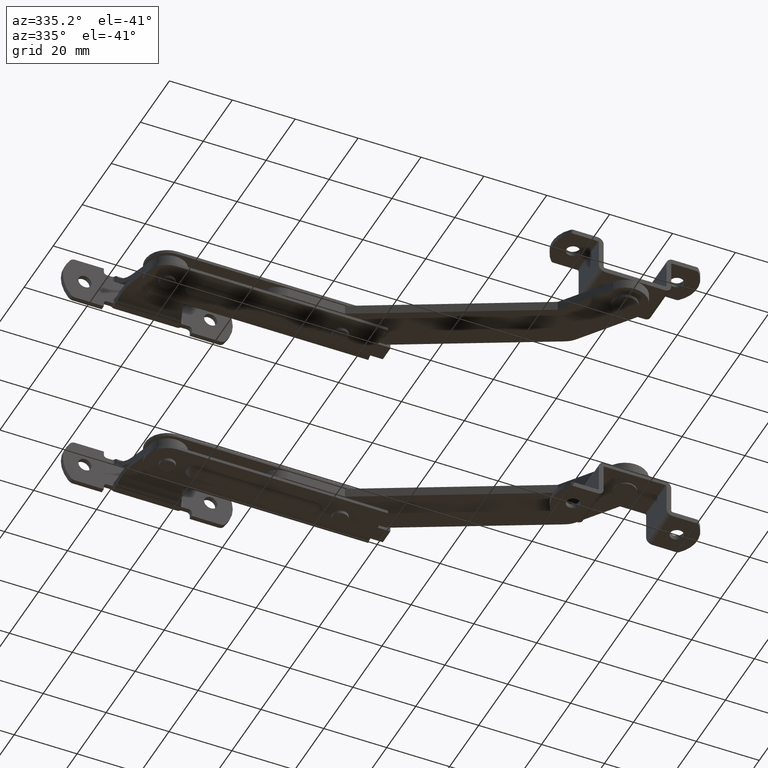
[diagram: clean part render]
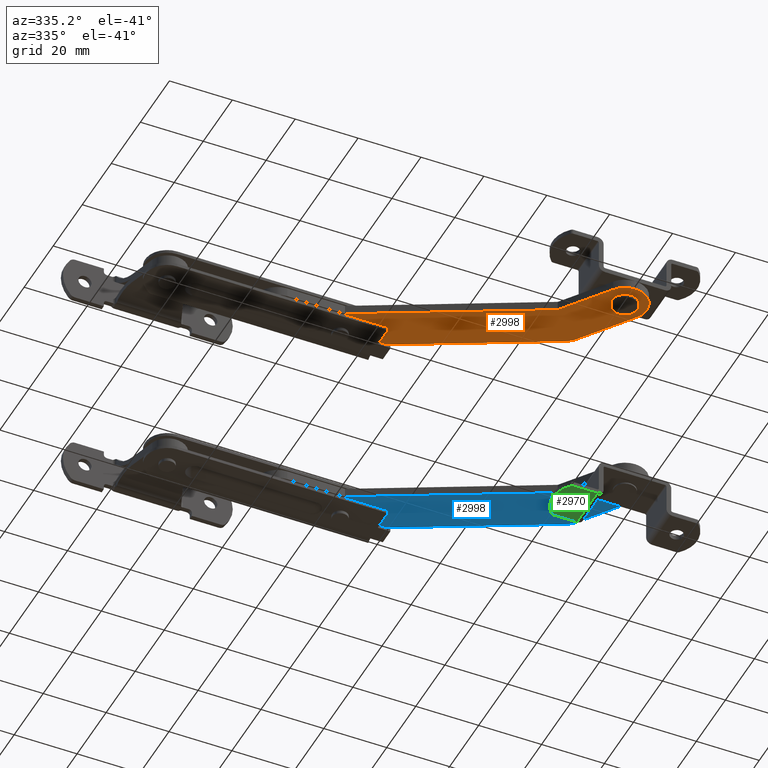
[diagram: same view with three faces highlighted in distinct colors, each labeled with its STEP entity id]
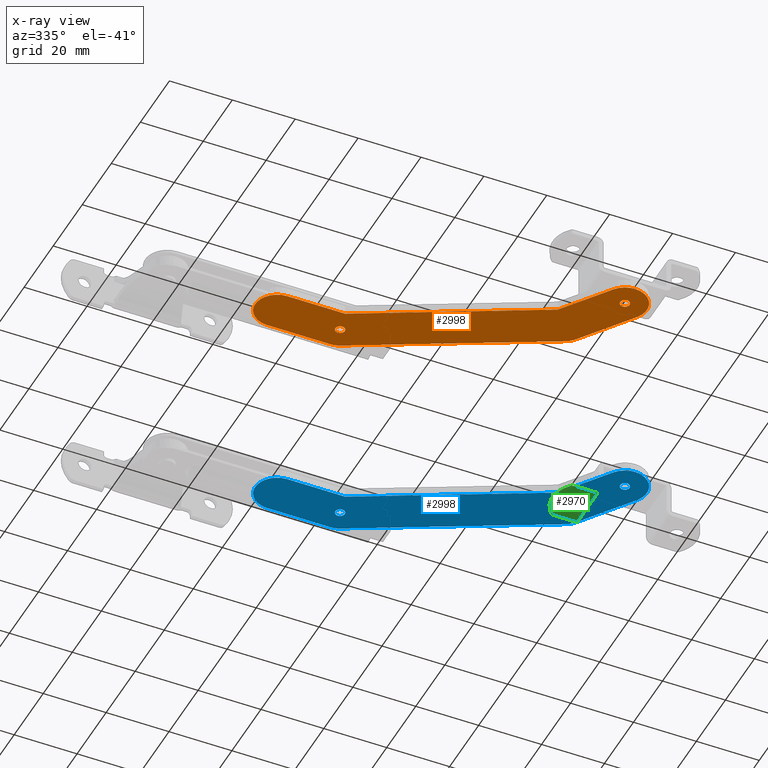
[diagram: x-ray of the same camera — body ghosted, the three highlighted faces saturated]
A machine part, auxiliary view with three faces highlighted in distinct colors.
The next image is the same camera in x-ray (body ghosted, the three faces saturated) — at least one of them is partly hidden behind the body in this view.
Their STEP definitions:

[orange] entity #2998 — the highlighted planar face has unit normal (-0, 0, 1).
#314=LINE('',#5423,#525);
#320=LINE('',#5435,#531);
#325=LINE('',#5453,#536);
#329=LINE('',#5460,#540);
#331=LINE('',#5471,#542);
#332=LINE('',#5474,#543);
#525=VECTOR('',#4184,61.4288691700439);
#531=VECTOR('',#4192,64.7798900820364);
#536=VECTOR('',#4209,18.2939027442204);
#540=VECTOR('',#4215,20.);
#542=VECTOR('',#4231,18.3550763437871);
#543=VECTOR('',#4234,20.);
#611=FACE_BOUND('',#1067,.T.);
#612=FACE_BOUND('',#1068,.T.);
#854=FACE_OUTER_BOUND('',#1066,.T.);
#1066=EDGE_LOOP('',(#2729,#2730,#2731,#2732,#2733,#2734,#2735,#2736,#2737,
#2738));
#1067=EDGE_LOOP('',(#2739));
#1068=EDGE_LOOP('',(#2740));
#1217=CIRCLE('',#3320,1.5);
#1219=CIRCLE('',#3323,1.5);
#1225=CIRCLE('',#3335,7.);
#1226=CIRCLE('',#3337,7.);
#1227=CIRCLE('',#3339,7.);
#1228=CIRCLE('',#3341,7.);
#1487=VERTEX_POINT('',#5409);
#1489=VERTEX_POINT('',#5414);
#1491=VERTEX_POINT('',#5419);
#1493=VERTEX_POINT('',#5422);
#1495=VERTEX_POINT('',#5428);
#1498=VERTEX_POINT('',#5433);
#1505=VERTEX_POINT('',#5452);
#1506=VERTEX_POINT('',#5456);
#1507=VERTEX_POINT('',#5458);
#1508=VERTEX_POINT('',#5466);
#1509=VERTEX_POINT('',#5470);
#1510=VERTEX_POINT('',#5472);
#1891=EDGE_CURVE('',#1487,#1487,#1217,.T.);
#1893=EDGE_CURVE('',#1489,#1489,#1219,.T.);
#1896=EDGE_CURVE('',#1493,#1491,#314,.T.);
#1902=EDGE_CURVE('',#1495,#1498,#320,.T.);
#1911=EDGE_CURVE('',#1505,#1493,#325,.T.);
#1915=EDGE_CURVE('',#1506,#1507,#329,.T.);
#1916=EDGE_CURVE('',#1498,#1506,#1225,.T.);
#1917=EDGE_CURVE('',#1507,#1505,#1226,.T.);
#1918=EDGE_CURVE('',#1508,#1495,#1227,.T.);
#1920=EDGE_CURVE('',#1491,#1509,#331,.T.);
#1921=EDGE_CURVE('',#1509,#1510,#1228,.T.);
#1922=EDGE_CURVE('',#1510,#1508,#332,.T.);
#2729=ORIENTED_EDGE('',*,*,#1920,.T.);
#2730=ORIENTED_EDGE('',*,*,#1921,.T.);
#2731=ORIENTED_EDGE('',*,*,#1922,.T.);
#2732=ORIENTED_EDGE('',*,*,#1918,.T.);
#2733=ORIENTED_EDGE('',*,*,#1902,.T.);
#2734=ORIENTED_EDGE('',*,*,#1916,.T.);
#2735=ORIENTED_EDGE('',*,*,#1915,.T.);
#2736=ORIENTED_EDGE('',*,*,#1917,.T.);
#2737=ORIENTED_EDGE('',*,*,#1911,.T.);
#2738=ORIENTED_EDGE('',*,*,#1896,.T.);
#2739=ORIENTED_EDGE('',*,*,#1891,.T.);
#2740=ORIENTED_EDGE('',*,*,#1893,.T.);
#2828=PLANE('',#3340);
#2998=ADVANCED_FACE('',(#854,#611,#612),#2828,.F.);
#3320=AXIS2_PLACEMENT_3D('',#5410,#4171,#4172);
#3323=AXIS2_PLACEMENT_3D('',#5415,#4177,#4178);
#3335=AXIS2_PLACEMENT_3D('',#5462,#4218,#4219);
#3337=AXIS2_PLACEMENT_3D('',#5464,#4222,#4223);
#3339=AXIS2_PLACEMENT_3D('',#5467,#4226,#4227);
#3340=AXIS2_PLACEMENT_3D('',#5469,#4229,#4230);
#3341=AXIS2_PLACEMENT_3D('',#5473,#4232,#4233);
#4171=DIRECTION('center_axis',(0.,0.,1.));
#4172=DIRECTION('ref_axis',(-1.,0.,0.));
#4177=DIRECTION('center_axis',(0.,0.,1.));
#4178=DIRECTION('ref_axis',(-1.,0.,0.));
#4184=DIRECTION('',(-0.895339586506701,0.445384131771677,0.));
#4192=DIRECTION('',(0.895339586506701,-0.445384131771677,0.));
#4209=DIRECTION('',(-0.589999999999999,0.807403244977379,0.));
#4215=DIRECTION('',(0.59,-0.807403244977378,0.));
#4218=DIRECTION('center_axis',(0.,0.,-1.));
#4219=DIRECTION('ref_axis',(1.,0.,0.));
#4222=DIRECTION('center_axis',(0.,0.,-1.));
#4223=DIRECTION('ref_axis',(1.,0.,0.));
#4226=DIRECTION('center_axis',(0.,0.,-1.));
#4227=DIRECTION('ref_axis',(1.,0.,0.));
#4229=DIRECTION('center_axis',(0.,0.,1.));
#4230=DIRECTION('ref_axis',(1.,0.,0.));
#4231=DIRECTION('',(-1.,1.11022302462516E-16,0.));
#4232=DIRECTION('center_axis',(0.,0.,-1.));
#4233=DIRECTION('ref_axis',(1.,0.,0.));
#4234=DIRECTION('',(1.,1.11022302462516E-16,0.));
#5409=CARTESIAN_POINT('',(71.3,-45.,-1.5));
#5410=CARTESIAN_POINT('Origin',(69.8,-45.,-1.5));
#5414=CARTESIAN_POINT('',(1.5,1.83697019872103E-16,-1.5));
#5415=CARTESIAN_POINT('Origin',(0.,0.,-1.5));
#5419=CARTESIAN_POINT('',(-1.64492365621293,-7.,-1.5));
#5422=CARTESIAN_POINT('',(53.3547746660684,-34.3594435610159,-1.5));
#5423=CARTESIAN_POINT('',(-3.11768892240173,-6.2673771055469,-1.5));
#5428=CARTESIAN_POINT('',(3.11768892240174,6.26737710554691,-1.5));
#5433=CARTESIAN_POINT('',(61.1176889224017,-22.5845579949055,-1.5));
#5435=CARTESIAN_POINT('',(61.1176889224017,-22.5845579949055,-1.5));
#5452=CARTESIAN_POINT('',(64.1481772851584,-49.13,-1.5));
#5453=CARTESIAN_POINT('',(52.3481772851584,-32.9819351004524,-1.5));
#5456=CARTESIAN_POINT('',(63.6518227148417,-24.7219351004524,-1.5));
#5458=CARTESIAN_POINT('',(75.4518227148417,-40.87,-1.5));
#5460=CARTESIAN_POINT('',(75.4518227148417,-40.87,-1.5));
#5462=CARTESIAN_POINT('Origin',(58.,-28.8519351004524,-1.5));
#5464=CARTESIAN_POINT('Origin',(69.8,-45.,-1.5));
#5466=CARTESIAN_POINT('',(-2.22044604925031E-15,7.,-1.5));
#5467=CARTESIAN_POINT('Origin',(0.,0.,-1.5));
#5469=CARTESIAN_POINT('Origin',(-9.99999191043413,4.75284301713877E-8,-1.5));
#5470=CARTESIAN_POINT('',(-20.,-7.,-1.5));
#5471=CARTESIAN_POINT('',(-20.,-7.,-1.5));
#5472=CARTESIAN_POINT('',(-20.,7.,-1.5));
#5473=CARTESIAN_POINT('Origin',(-20.,0.,-1.5));
#5474=CARTESIAN_POINT('',(-2.22044604925031E-15,7.,-1.5));

[blue] entity #2998 — the highlighted planar face has unit normal (-0, 0, 1).
#314=LINE('',#5423,#525);
#320=LINE('',#5435,#531);
#325=LINE('',#5453,#536);
#329=LINE('',#5460,#540);
#331=LINE('',#5471,#542);
#332=LINE('',#5474,#543);
#525=VECTOR('',#4184,61.4288691700439);
#531=VECTOR('',#4192,64.7798900820364);
#536=VECTOR('',#4209,18.2939027442204);
#540=VECTOR('',#4215,20.);
#542=VECTOR('',#4231,18.3550763437871);
#543=VECTOR('',#4234,20.);
#611=FACE_BOUND('',#1067,.T.);
#612=FACE_BOUND('',#1068,.T.);
#854=FACE_OUTER_BOUND('',#1066,.T.);
#1066=EDGE_LOOP('',(#2729,#2730,#2731,#2732,#2733,#2734,#2735,#2736,#2737,
#2738));
#1067=EDGE_LOOP('',(#2739));
#1068=EDGE_LOOP('',(#2740));
#1217=CIRCLE('',#3320,1.5);
#1219=CIRCLE('',#3323,1.5);
#1225=CIRCLE('',#3335,7.);
#1226=CIRCLE('',#3337,7.);
#1227=CIRCLE('',#3339,7.);
#1228=CIRCLE('',#3341,7.);
#1487=VERTEX_POINT('',#5409);
#1489=VERTEX_POINT('',#5414);
#1491=VERTEX_POINT('',#5419);
#1493=VERTEX_POINT('',#5422);
#1495=VERTEX_POINT('',#5428);
#1498=VERTEX_POINT('',#5433);
#1505=VERTEX_POINT('',#5452);
#1506=VERTEX_POINT('',#5456);
#1507=VERTEX_POINT('',#5458);
#1508=VERTEX_POINT('',#5466);
#1509=VERTEX_POINT('',#5470);
#1510=VERTEX_POINT('',#5472);
#1891=EDGE_CURVE('',#1487,#1487,#1217,.T.);
#1893=EDGE_CURVE('',#1489,#1489,#1219,.T.);
#1896=EDGE_CURVE('',#1493,#1491,#314,.T.);
#1902=EDGE_CURVE('',#1495,#1498,#320,.T.);
#1911=EDGE_CURVE('',#1505,#1493,#325,.T.);
#1915=EDGE_CURVE('',#1506,#1507,#329,.T.);
#1916=EDGE_CURVE('',#1498,#1506,#1225,.T.);
#1917=EDGE_CURVE('',#1507,#1505,#1226,.T.);
#1918=EDGE_CURVE('',#1508,#1495,#1227,.T.);
#1920=EDGE_CURVE('',#1491,#1509,#331,.T.);
#1921=EDGE_CURVE('',#1509,#1510,#1228,.T.);
#1922=EDGE_CURVE('',#1510,#1508,#332,.T.);
#2729=ORIENTED_EDGE('',*,*,#1920,.T.);
#2730=ORIENTED_EDGE('',*,*,#1921,.T.);
#2731=ORIENTED_EDGE('',*,*,#1922,.T.);
#2732=ORIENTED_EDGE('',*,*,#1918,.T.);
#2733=ORIENTED_EDGE('',*,*,#1902,.T.);
#2734=ORIENTED_EDGE('',*,*,#1916,.T.);
#2735=ORIENTED_EDGE('',*,*,#1915,.T.);
#2736=ORIENTED_EDGE('',*,*,#1917,.T.);
#2737=ORIENTED_EDGE('',*,*,#1911,.T.);
#2738=ORIENTED_EDGE('',*,*,#1896,.T.);
#2739=ORIENTED_EDGE('',*,*,#1891,.T.);
#2740=ORIENTED_EDGE('',*,*,#1893,.T.);
#2828=PLANE('',#3340);
#2998=ADVANCED_FACE('',(#854,#611,#612),#2828,.F.);
#3320=AXIS2_PLACEMENT_3D('',#5410,#4171,#4172);
#3323=AXIS2_PLACEMENT_3D('',#5415,#4177,#4178);
#3335=AXIS2_PLACEMENT_3D('',#5462,#4218,#4219);
#3337=AXIS2_PLACEMENT_3D('',#5464,#4222,#4223);
#3339=AXIS2_PLACEMENT_3D('',#5467,#4226,#4227);
#3340=AXIS2_PLACEMENT_3D('',#5469,#4229,#4230);
#3341=AXIS2_PLACEMENT_3D('',#5473,#4232,#4233);
#4171=DIRECTION('center_axis',(0.,0.,1.));
#4172=DIRECTION('ref_axis',(-1.,0.,0.));
#4177=DIRECTION('center_axis',(0.,0.,1.));
#4178=DIRECTION('ref_axis',(-1.,0.,0.));
#4184=DIRECTION('',(-0.895339586506701,0.445384131771677,0.));
#4192=DIRECTION('',(0.895339586506701,-0.445384131771677,0.));
#4209=DIRECTION('',(-0.589999999999999,0.807403244977379,0.));
#4215=DIRECTION('',(0.59,-0.807403244977378,0.));
#4218=DIRECTION('center_axis',(0.,0.,-1.));
#4219=DIRECTION('ref_axis',(1.,0.,0.));
#4222=DIRECTION('center_axis',(0.,0.,-1.));
#4223=DIRECTION('ref_axis',(1.,0.,0.));
#4226=DIRECTION('center_axis',(0.,0.,-1.));
#4227=DIRECTION('ref_axis',(1.,0.,0.));
#4229=DIRECTION('center_axis',(0.,0.,1.));
#4230=DIRECTION('ref_axis',(1.,0.,0.));
#4231=DIRECTION('',(-1.,1.11022302462516E-16,0.));
#4232=DIRECTION('center_axis',(0.,0.,-1.));
#4233=DIRECTION('ref_axis',(1.,0.,0.));
#4234=DIRECTION('',(1.,1.11022302462516E-16,0.));
#5409=CARTESIAN_POINT('',(71.3,-45.,-1.5));
#5410=CARTESIAN_POINT('Origin',(69.8,-45.,-1.5));
#5414=CARTESIAN_POINT('',(1.5,1.83697019872103E-16,-1.5));
#5415=CARTESIAN_POINT('Origin',(0.,0.,-1.5));
#5419=CARTESIAN_POINT('',(-1.64492365621293,-7.,-1.5));
#5422=CARTESIAN_POINT('',(53.3547746660684,-34.3594435610159,-1.5));
#5423=CARTESIAN_POINT('',(-3.11768892240173,-6.2673771055469,-1.5));
#5428=CARTESIAN_POINT('',(3.11768892240174,6.26737710554691,-1.5));
#5433=CARTESIAN_POINT('',(61.1176889224017,-22.5845579949055,-1.5));
#5435=CARTESIAN_POINT('',(61.1176889224017,-22.5845579949055,-1.5));
#5452=CARTESIAN_POINT('',(64.1481772851584,-49.13,-1.5));
#5453=CARTESIAN_POINT('',(52.3481772851584,-32.9819351004524,-1.5));
#5456=CARTESIAN_POINT('',(63.6518227148417,-24.7219351004524,-1.5));
#5458=CARTESIAN_POINT('',(75.4518227148417,-40.87,-1.5));
#5460=CARTESIAN_POINT('',(75.4518227148417,-40.87,-1.5));
#5462=CARTESIAN_POINT('Origin',(58.,-28.8519351004524,-1.5));
#5464=CARTESIAN_POINT('Origin',(69.8,-45.,-1.5));
#5466=CARTESIAN_POINT('',(-2.22044604925031E-15,7.,-1.5));
#5467=CARTESIAN_POINT('Origin',(0.,0.,-1.5));
#5469=CARTESIAN_POINT('Origin',(-9.99999191043413,4.75284301713877E-8,-1.5));
#5470=CARTESIAN_POINT('',(-20.,-7.,-1.5));
#5471=CARTESIAN_POINT('',(-20.,-7.,-1.5));
#5472=CARTESIAN_POINT('',(-20.,7.,-1.5));
#5473=CARTESIAN_POINT('Origin',(-20.,0.,-1.5));
#5474=CARTESIAN_POINT('',(-2.22044604925031E-15,7.,-1.5));

[green] entity #2970 — the highlighted planar face has unit normal (0, -0, -1).
#279=LINE('',#5293,#490);
#287=LINE('',#5318,#498);
#288=LINE('',#5319,#499);
#490=VECTOR('',#4041,14.);
#498=VECTOR('',#4071,7.58722101309791);
#499=VECTOR('',#4072,7.58722101309791);
#600=FACE_BOUND('',#1028,.T.);
#826=FACE_OUTER_BOUND('',#1027,.T.);
#1027=EDGE_LOOP('',(#2574,#2575,#2576,#2577,#2578,#2579));
#1028=EDGE_LOOP('',(#2580));
#1184=CIRCLE('',#3257,1.);
#1186=CIRCLE('',#3260,1.);
#1197=CIRCLE('',#3279,2.1);
#1198=CIRCLE('',#3281,9.66666666666667);
#1435=VERTEX_POINT('',#5250);
#1436=VERTEX_POINT('',#5252);
#1439=VERTEX_POINT('',#5259);
#1440=VERTEX_POINT('',#5261);
#1450=VERTEX_POINT('',#5289);
#1452=VERTEX_POINT('',#5292);
#1458=VERTEX_POINT('',#5313);
#1815=EDGE_CURVE('',#1435,#1436,#1184,.T.);
#1819=EDGE_CURVE('',#1440,#1439,#1186,.T.);
#1834=EDGE_CURVE('',#1450,#1452,#279,.T.);
#1845=EDGE_CURVE('',#1458,#1458,#1197,.T.);
#1846=EDGE_CURVE('',#1436,#1439,#1198,.T.);
#1847=EDGE_CURVE('',#1435,#1452,#287,.T.);
#1848=EDGE_CURVE('',#1440,#1450,#288,.T.);
#2574=ORIENTED_EDGE('',*,*,#1846,.F.);
#2575=ORIENTED_EDGE('',*,*,#1815,.F.);
#2576=ORIENTED_EDGE('',*,*,#1847,.T.);
#2577=ORIENTED_EDGE('',*,*,#1834,.F.);
#2578=ORIENTED_EDGE('',*,*,#1848,.F.);
#2579=ORIENTED_EDGE('',*,*,#1819,.T.);
#2580=ORIENTED_EDGE('',*,*,#1845,.T.);
#2814=PLANE('',#3282);
#2970=ADVANCED_FACE('',(#826,#600),#2814,.T.);
#3257=AXIS2_PLACEMENT_3D('',#5253,#4002,#4003);
#3260=AXIS2_PLACEMENT_3D('',#5262,#4010,#4011);
#3279=AXIS2_PLACEMENT_3D('',#5314,#4063,#4064);
#3281=AXIS2_PLACEMENT_3D('',#5316,#4067,#4068);
#3282=AXIS2_PLACEMENT_3D('',#5317,#4069,#4070);
#4002=DIRECTION('center_axis',(0.,0.,1.));
#4003=DIRECTION('ref_axis',(-0.392232270276367,0.9198662110078,0.));
#4010=DIRECTION('center_axis',(0.,0.,-1.));
#4011=DIRECTION('ref_axis',(-0.392232270276367,-0.9198662110078,0.));
#4041=DIRECTION('',(-4.28728752837506E-32,1.,0.));
#4063=DIRECTION('center_axis',(0.,0.,1.));
#4064=DIRECTION('ref_axis',(-1.,-4.28728752837506E-32,0.));
#4067=DIRECTION('center_axis',(0.,0.,1.));
#4068=DIRECTION('ref_axis',(1.,3.47418127299359E-32,0.));
#4069=DIRECTION('center_axis',(0.,0.,-1.));
#4070=DIRECTION('ref_axis',(-1.,0.,0.));
#4071=DIRECTION('',(1.,4.28728752837506E-32,0.));
#4072=DIRECTION('',(1.,8.57457505675013E-32,0.));
#5250=CARTESIAN_POINT('',(-19.5872210130979,7.,0.));
#5252=CARTESIAN_POINT('',(-20.3088234376861,6.69230769230769,0.));
#5253=CARTESIAN_POINT('Origin',(-19.5872210130979,6.,0.));
#5259=CARTESIAN_POINT('',(-20.3088234376861,-6.69230769230769,0.));
#5261=CARTESIAN_POINT('',(-19.5872210130979,-7.,0.));
#5262=CARTESIAN_POINT('Origin',(-19.5872210130979,-6.,0.));
#5289=CARTESIAN_POINT('',(-12.,-7.,0.));
#5292=CARTESIAN_POINT('',(-12.,7.,0.));
#5293=CARTESIAN_POINT('',(-12.,1.75,0.));
#5313=CARTESIAN_POINT('',(-18.6,-1.19615322041664E-30,0.));
#5314=CARTESIAN_POINT('Origin',(-16.5,-7.07402442181886E-31,0.));
#5316=CARTESIAN_POINT('Origin',(-13.3333333333333,-1.14327667423335E-30,
0.));
#5317=CARTESIAN_POINT('Origin',(-11.5,-3.5,0.));
#5318=CARTESIAN_POINT('',(-23.,7.,0.));
#5319=CARTESIAN_POINT('',(-23.,-7.,0.));